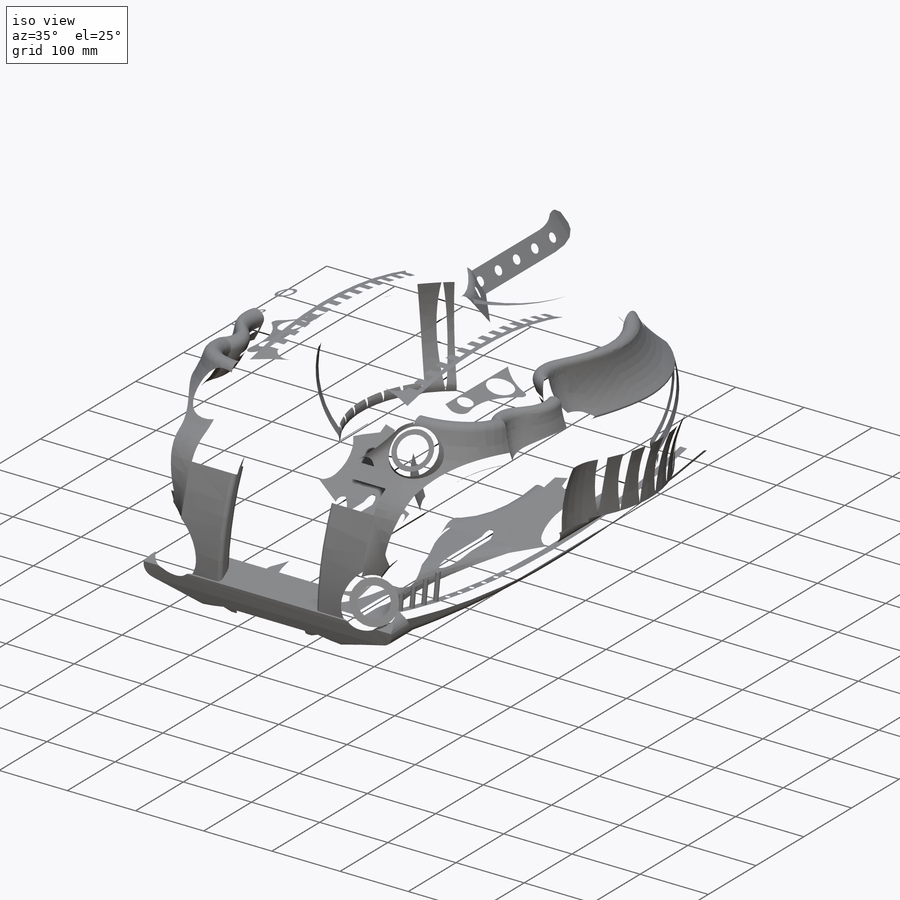
[diagram: iso view]
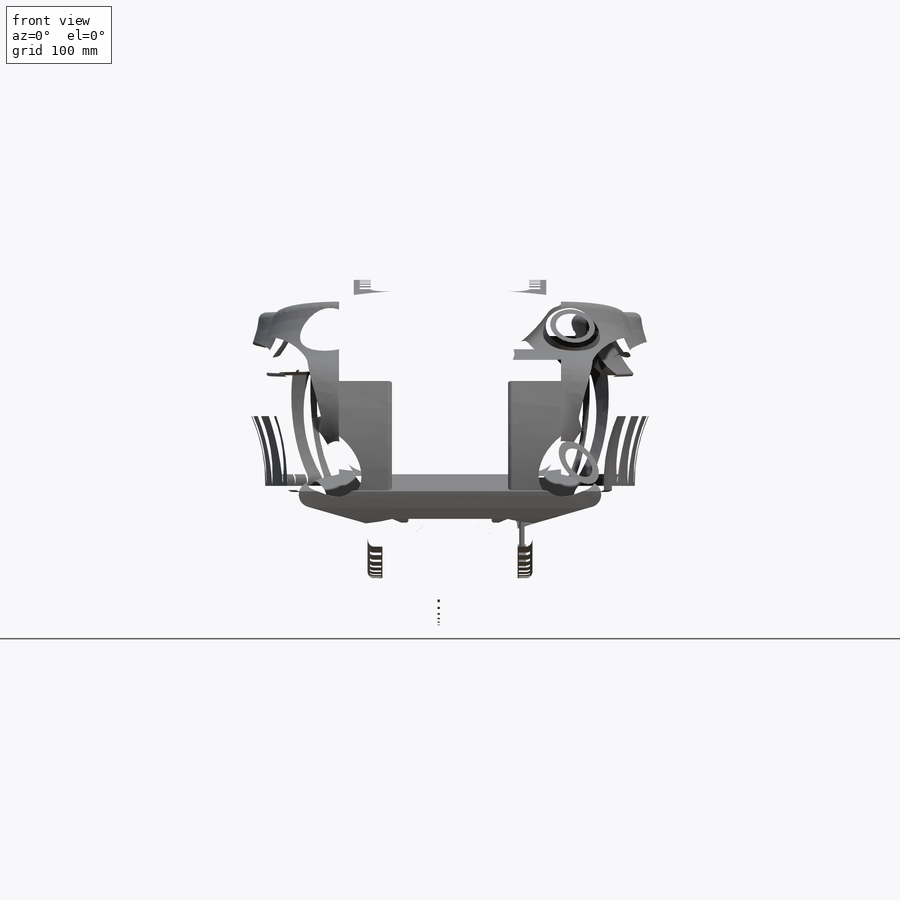
[diagram: front view]
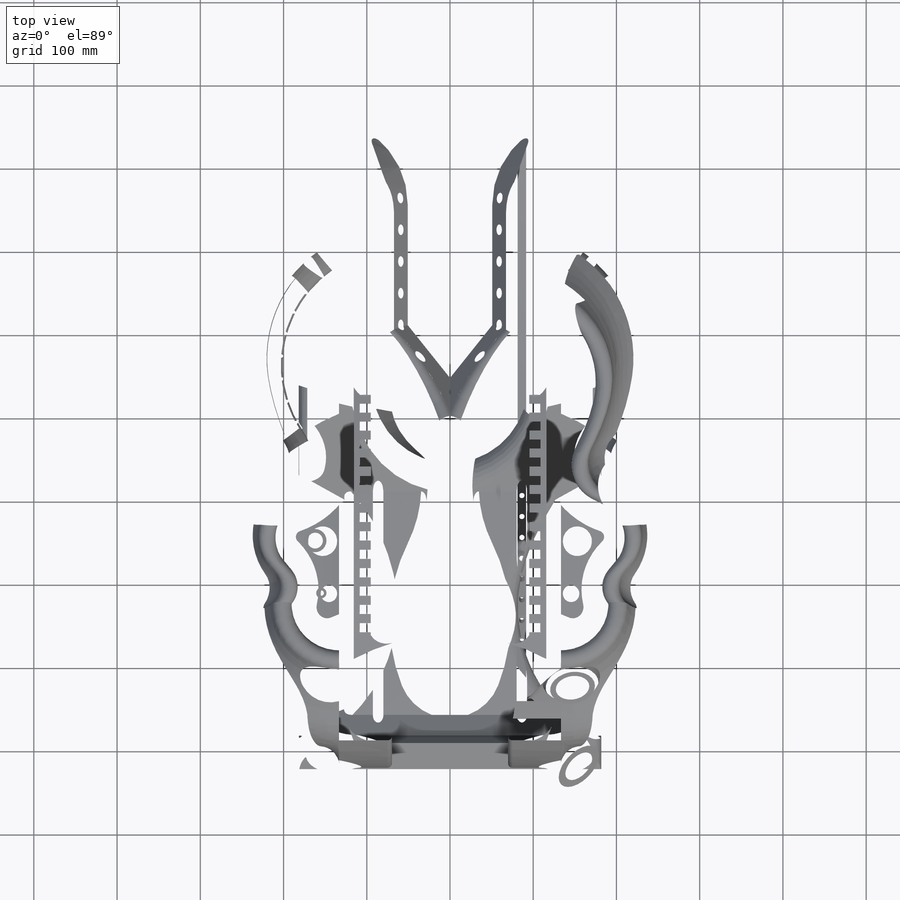
[diagram: top view]
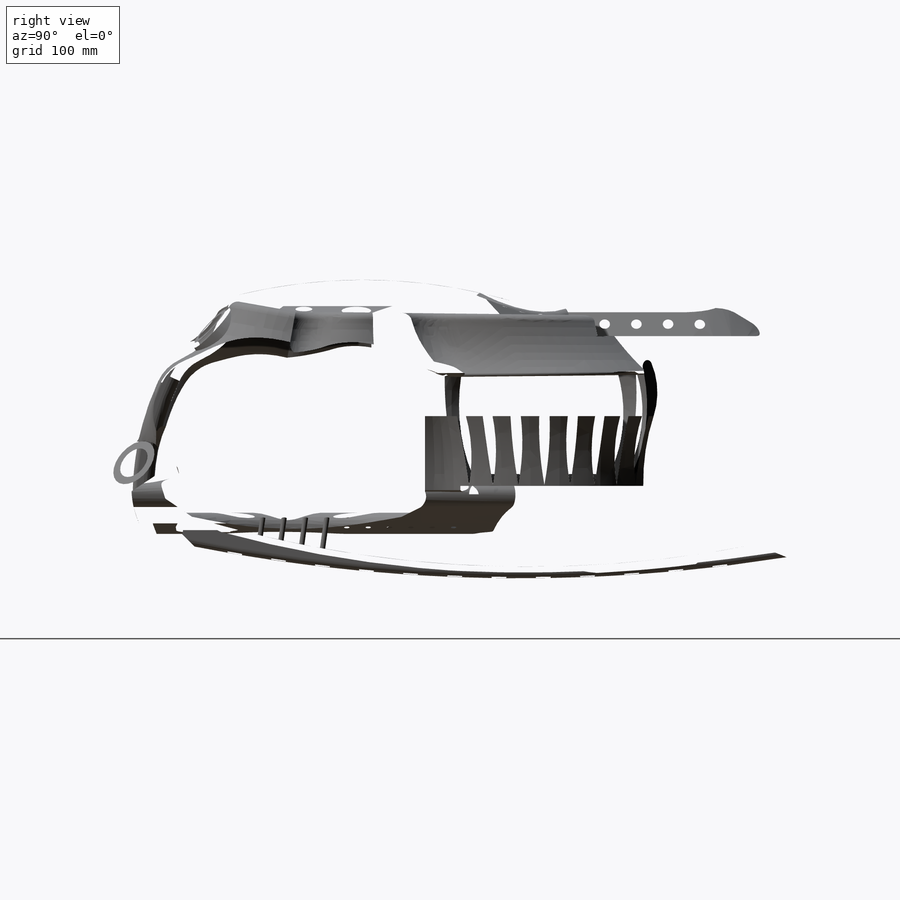
[diagram: right view]
SOLIDWORKS PART (.sldprt)
format: sldprt  version: not decoded by parser v0  size: 7,817,216 bytes
history: native  units: mm
features: sketch x58, fillet x57, plane x37, mirror x25, extrude x17, cut_extrude x16, revolve x7, pattern_circular x3, sweep x2, material x1, pattern_linear x1 (+13 scaffold rows collapsed)
feature tree (237):
  scaffold x13  (default folders/planes/origin — collapsed)
  material  "Material <not specified>"
  sketch  "Sketch1"  dims[D2=19.05mm D9=127.0mm D21=38.1mm D22=63.5mm D25=27.94mm D27=228.6mm D1=25.4mm D3=141.986mm D4=127.762mm D5=~61.94268mm D6=88.9mm D7=20.32mm D8=203.2mm D10=342.9mm D11=63.5mm D12=50.8mm D13=203.2mm D14=30.48mm D15=50.8mm D16=203.2mm D17=50.8mm D18=184.15mm D19=30.48mm D20=10.16mm D23=44.45mm D24=57.15mm D26=6.35mm]
  extrude  "Boss-Extrude1"  Depth=101.6mm
  sketch  "Sketch2"  dims[D4=19.05mm D1=127.0mm D2=63.5mm D3=88.9mm]
  extrude  "Boss-Extrude2"  Depth=12.7mm
  plane  "Plane1"  Offset=33.02mm
  sketch  "Sketch3"  dims[c1.D6=254.0mm c1.D3=50.8mm c1.D1=19.05mm c1.D2=55.88mm c2.D3=12.7mm c2.D4=76.2mm c2.D5=30.48mm c2.D7=3.81mm c2.D8=127.0mm c2.D2=25.4mm]
  cut_extrude  "Cut-Extrude1"  [1 undecoded]
  fillet  "Fillet1"  Radius=119.38mm
  fillet  "Fillet2"  Radius=10.16mm
  fillet  "Fillet3"  Radius=10.16mm
  plane  "Plane2"  Offset=101.6mm
  sketch  "Sketch4"  dims[D8=330.2mm D12=635.0mm D1=76.2mm D2=63.5mm D3=25.4mm D4=25.4mm D5=152.4mm D6=30.48mm D7=25.4mm D9=15.24mm D10=330.2mm D11=5.08mm]
  extrude  "Boss-Extrude3"  Depth=63.5mm
  mirror  "Mirror1"
  plane  "Plane3"
  plane  "Plane4"  Offset=2.54mm
  sketch  "Sketch5"  dims[D1=254.0mm]
  revolve  "Revolve1"  Angle=0.25deg
  fillet  "Fillet4"  Radius=50.8mm
  fillet  "Fillet5"  Radius=25.4mm
  fillet  "Fillet6"  Radius=25.4mm
  fillet  "Fillet7"  Radius=12.7mm
  fillet  "Fillet8"  Radius=12.7mm
  fillet  "Fillet9"  Radius=12.7mm
  fillet  "Fillet10"  Radius=12.7mm
  fillet  "Fillet11"  Radius=5.08mm
  fillet  "Fillet12"  Radius=17.78mm
  sketch  "Sketch6"  dims[c1.D1=127.0mm c1.D2=~83.504095mm c2.D2=10.0deg]
  revolve  "Revolve3"  Angle=90deg
  mirror  "Mirror2"
  fillet  "Fillet13"  Radius=35.56mm
  sketch  "Sketch7"
  sketch  "Sketch9"  dims[D1=11.684mm D9=30.226mm D2=208.28mm D3=66.04mm D4=86.106mm D5=76.454mm D6=1.27mm D7=25.4mm D8=21.59mm]
  plane  "Plane6"
  sketch  "Sketch10"  dims[D1=133.35mm]
  plane  "Plane7"
  sketch  "Sketch11"  dims[D1=16.764mm]
  mirror  "Mirror3"
  fillet  "Fillet14"  Radius=2.54mm
  fillet  "Fillet16"  Radius=2.54mm
  plane  "Plane8"
  plane  "Plane9"  Offset=40.64mm
  sketch  "Sketch12"  dims[D1=190.5mm D2=304.8mm]
  cut_extrude  "Cut-Extrude2"  Depth=71.12mm
  mirror  "Mirror4"
  plane  "Plane10"  Offset=6.35mm
  sketch  "Sketch13"  dims[c1.D1=19.05mm c1.D2=90.17mm c1.D3=110.49mm c1.D4=59.69mm c1.D5=88.9mm c1.D6=8.89mm c1.D7=7.62mm c1.D8=63.5mm c1.D9=25.4mm c1.D10=15.24mm c1.D11=25.4mm c1.D12=55.88mm c1.D13=43.18mm c1.D14=33.02mm c1.D15=88.9mm c1.D16=101.6mm c1.D17=55.88mm c1.D18=11.43mm c1.D19=20.32mm c1.D20=44.45mm c1.D21=27.94mm c1.D22=26.67mm c2.D19=29.21mm]
  extrude  "Boss-Extrude4"  Depth=5.08mm
  mirror  "Mirror5"
  plane  "Plane11"
  plane  "Plane12"  Offset=46.99mm
  sketch  "Sketch14"  dims[D1=158.75mm]
  cut_extrude  "Cut-Extrude3"  [1 undecoded]
  mirror  "Mirror6"
  fillet  "Fillet17"  Radius=12.7mm
  plane  "Plane13"
  plane  "Plane14"  Offset=12.7mm
  sketch  "Sketch16"
  sketch  "Sketch15"  dims[D1=43.18mm D2=15.24mm D3=15.24mm D4=66.04mm D5=15.24mm]
  revolve  "Revolve4"  Angle=1deg
  fillet  "Fillet18"  Radius=1.27mm
  pattern_circular  "CirPattern1"  Count=14 Angle=2deg
  plane  "Plane15"  Offset=58.42mm
  sketch  "Sketch17"  dims[D2=88.9mm D1=222.25mm D3=213.36mm]
  cut_extrude  "Cut-Extrude4"  [1 undecoded]
  mirror  "Mirror7"
  fillet  "Fillet19"  Radius=3.81mm
  sketch  "Sketch18"  dims[c1.D1=2.54mm c1.D2=3.81mm c1.D3=19.05mm c1.D4=1.27mm c1.D5=6.35mm c1.D6=30.48mm c1.D7=12.7mm c1.D8=22.86mm c2.D8=25.4mm]
  extrude  "Boss-Extrude5"  Depth=289.56mm
  sketch  "Sketch19"  dims[D1=76.2mm D2=88.9mm D3=30.48mm D4=88.9mm D5=330.2mm D6=12.7mm D7=101.6mm D8=203.2mm]
  extrude  "Boss-Extrude6"  Depth=152.4mm
  sketch  "Sketch20"  dims[D1=101.6mm D2=762.0mm]
  revolve  "Revolve5"  Angle=65deg
  mirror  "Mirror8"
  plane  "Plane16"  Offset=142.24mm
  sketch  "Sketch21"  dims[D1=114.3mm D3=181.61mm D2=91.44mm]
  cut_extrude  "Cut-Extrude5"  [1 undecoded]
  mirror  "Mirror9"
  fillet  "Fillet20"  Radius=34.29mm
  plane  "Plane17"  Offset=22.86mm
  sketch  "Sketch22"  dims[D1=203.2mm]
  plane  "Plane18"
  sketch  "Sketch23"  dims[D1=50.8mm D2=254.0mm D3=30.48mm]
  sweep  "Cut-Sweep1"
  mirror  "Mirror10"
  fillet  "Fillet21"  Radius=29.21mm
  fillet  "Fillet22"  Radius=66.04mm
  plane  "Plane19"
  sketch  "Sketch24"  dims[D1=12.7mm D2=12.7mm]
  extrude  "Boss-Extrude7"  Depth=12.7mm
  mirror  "Mirror11"
  fillet  "Fillet23"  Radius=66.04mm
  plane  "Plane21"
  sketch  "Sketch27"  dims[D3=63.5mm D1=11.43mm D2=142.24mm]
  extrude  "Boss-Extrude8"  Depth=2.54mm
  mirror  "Mirror13"
  fillet  "Fillet24"  Radius=5.08mm
  sketch  "Sketch28"  dims[D1=40.64mm]
  cut_extrude  "Cut-Extrude6"  Depth=10.16mm
  mirror  "Mirror14"
  fillet  "Fillet28"  Radius=5.08mm
  fillet  "Fillet30"  Radius=5.08mm
  sketch  "Sketch31"  dims[D5=1016.0mm D1=116.84mm D2=336.55mm D3=127.0mm D4=63.5mm]
  extrude  "Boss-Extrude9"  Depth=370.84mm
  sketch  "Sketch32"  dims[D1=33.02mm D2=43.18mm D3=2.54mm D4=2.54mm D5=2.54mm D6=2.54mm]
  extrude  "Boss-Extrude10"  Depth=375.92mm
  plane  "Plane23"  Offset=139.7mm
  sketch  "Sketch33"  dims[D8=203.2mm D1=88.9mm D2=12.7mm D3=12.7mm D4=30.48mm D5=25.4mm D6=6.35mm D7=12.7mm D9=317.5mm]
  cut_extrude  "Cut-Extrude9"  [1 undecoded]
  sketch  "Sketch35"  dims[D1=269.24mm D2=304.8mm]
  cut_extrude  "Cut-Extrude10"  [1 undecoded]
  fillet  "Fillet31"  Radius=25.4mm
  sketch  "Sketch36"  dims[D2=1079.5mm D1=558.8mm]
  cut_extrude  "Cut-Extrude11"  Depth=381mm
  fillet  "Fillet32"  Radius=25.4mm
  fillet  "Fillet33"  Radius=38.1mm
  fillet  "Fillet34"  Radius=25.4mm
  fillet  "Fillet35"  Radius=101.6mm
  fillet  "Fillet36"  Radius=22.86mm
  sketch  "Sketch37"  dims[c1.D3=15.24mm c1.D1=10.16mm c1.D2=38.1mm c2.D3=15.24mm c2.D4=68.58mm c2.D5=50.8mm c2.D6=~23.943826mm c2.D7=~30.240757mm]
  cut_extrude  "Cut-Extrude12"  [1 undecoded]
  fillet  "Fillet38"  Radius=5.08mm
  plane  "Plane24"
  sketch  "Sketch38"  dims[D1=63.5mm]
  extrude  "Boss-Extrude11"  Depth=38.1mm
  mirror  "Mirror15"
  fillet  "Fillet39"  Radius=7.62mm
  fillet  "Fillet40"  Radius=1.27mm
  fillet  "Fillet41"  Radius=1.27mm
  sketch  "Sketch39"  dims[D1=40.64mm]
  cut_extrude  "Cut-Extrude13"  Depth=10.16mm
  mirror  "Mirror16"
  fillet  "Fillet42"  Radius=40.64mm
  fillet  "Fillet43"  Radius=35.56mm
  plane  "Plane25"  Offset=228.6mm
  sketch  "Sketch40"  dims[c1.D5=7.62mm c1.D9=196.85mm c1.D1=31.75mm c1.D2=19.05mm c1.D3=19.05mm c1.D4=7.62mm c1.D6=137.16mm c1.D7=16.51mm c1.D8=88.9mm c1.D10=63.5mm c1.D11=63.5mm c2.D11=90.0deg c3.D11=1016.0mm c4.D11=5.08mm]
  plane  "Plane26"
  sketch  "Sketch41"  dims[D1=44.45mm]
  sweep  "Sweep1"
  fillet  "Fillet44"  Radius=15.24mm
  mirror  "Mirror17"
  fillet  "Fillet45"  Radius=15.24mm
  plane  "Plane27"  Offset=248.92mm
  sketch  "Sketch42"  dims[D4=381.0mm D1=6.35mm D2=6.35mm D3=372.11mm]
  cut_extrude  "Cut-Extrude14"  [1 undecoded]
  pattern_circular  "CirPattern3"  Count=32 Angle=360deg
  mirror  "Mirror18"
  plane  "Plane28"  Offset=88.9mm
  sketch  "Sketch43"  dims[D6=2032.0mm D10=1397.0mm D1=30.48mm D2=15.24mm D3=15.24mm D4=711.2mm D5=12.7mm D7=38.1mm D8=15.24mm D9=38.1mm]
  extrude  "Boss-Extrude12"  Depth=20.32mm
  mirror  "Mirror19"
  fillet  "Fillet47"  Radius=7.62mm
  fillet  "Fillet48"  Radius=10.16mm
  fillet  "Fillet49"  Radius=7.62mm
  fillet  "Fillet53"  Radius=2.54mm
  sketch  "Sketch44"  dims[D2=203.2mm D3=165.1mm D1=101.6mm]
  cut_extrude  "Cut-Extrude15"  [1 undecoded]
  mirror  "Mirror20"
  fillet  "Fillet54"  Radius=17.78mm
  plane  "Plane29"  Offset=73.66mm
  sketch  "Sketch45"  dims[D1=190.5mm]
  plane  "Plane30"
  plane  "Plane31"  Offset=7.62mm
  sketch  "Sketch46"  dims[D1=6.35mm D2=304.8mm D4=25.4mm D3=10.0]
  extrude  "Boss-Extrude13"  [1 undecoded]
  plane  "Plane32"  Offset=22.86mm
  sketch  "Sketch47"  dims[D1=12.7mm]
  extrude  "Boss-Extrude14"  Depth=210.82mm
  mirror  "Mirror21"
  plane  "Plane33"
  sketch  "Sketch48"  dims[c1.D1=30.48mm c1.D5=15.24mm c1.D3=127.0mm c1.D2=30.48mm c2.D3=63.5mm c2.D4=7.62mm]
  extrude  "Boss-Extrude15"  Depth=40.64mm
  mirror  "Mirror25"
  fillet  "Fillet55"  Radius=2.54mm
  fillet  "Fillet56"  Radius=1.27mm
  sketch  "Sketch49"  dims[D1=19.05mm D2=6.35mm]
  cut_extrude  "Cut-Extrude16"  Depth=38.1mm
  mirror  "Mirror26"
  sketch  "Sketch50"
  sketch  "Sketch51"
  plane  "Plane34"
  sketch  "Sketch52"  dims[D6=7.62mm D1=38.1mm D2=114.3mm D3=8.89mm D4=6.35mm D5=25.4mm D7=19.05mm D8=25.4mm D9=6.35mm D10=6.35mm D11=25.4mm]
  revolve  "Revolve6"  Angle=0.5deg
  pattern_circular  "CirPattern5"  Count=12 Angle=1.5deg
  fillet  "Fillet57"  Radius=25.4mm
  fillet  "Fillet58"  Radius=50.8mm
  sketch  "Sketch53"  dims[D2=25.4mm D3=10.16mm D1=3.81mm]
  revolve  "Revolve7"  Angle=30deg
  fillet  "Fillet59"  Radius=12.7mm
  fillet  "Fillet60"  Radius=5.08mm
  sketch  "Sketch55"  dims[D5=88.9mm D1=736.6mm D2=50.8mm D3=71.12mm D4=63.5mm D6=~452.535874mm]
  cut_extrude  "Cut-Extrude17"  Depth=2.54mm
  fillet  "Fillet61"  Radius=12.7mm
  fillet  "Fillet62"  Radius=5.08mm
  plane  "Plane35"  Offset=172.72mm
  sketch  "Sketch56"  dims[c1.D1=54.61mm c1.D2=54.61mm c1.D4=203.2mm c2.D2=101.6mm c2.D3=165.1mm]
  cut_extrude  "Cut-Extrude18"  [1 undecoded]
  fillet  "Fillet63"  Radius=7.62mm
  fillet  "Fillet64"  Radius=12.7mm
  sketch  "Sketch57"  dims[D1=127.0mm]
  plane  "Plane36"
  sketch  "Sketch58"  dims[c1.D3=~138.911415mm c1.D1=2.54mm c1.D2=2.54mm c2.D3=1.27mm]
  extrude  "Boss-Extrude16"  Depth=10.16mm
  mirror  "Mirror27"
  sketch  "Sketch59"  dims[D1=8.89mm D2=8.89mm]
  plane  "Plane37"  Offset=96.52mm
  sketch  "Sketch60"  dims[D3=2029.46mm D1=25.4mm D2=190.5mm]
  plane  "Plane38"
  sketch  "Sketch61"  dims[D3=76.2mm D1=44.45mm D2=56.515mm]
  plane  "Plane39"
  sketch  "Sketch62"  dims[D2=127.0mm D1=12.7mm]
  mirror  "Mirror28"
  fillet  "Fillet67"  Radius=5.08mm
  fillet  "Fillet70"  Radius=2.54mm
  sketch  "Sketch63"
  extrude  "Boss-Extrude17"  Depth=44.45mm
  fillet  "Fillet71"  Radius=3.175mm
  mirror  "Mirror29"
  plane  "Plane40"  Offset=368.3mm
  sketch  "Sketch64"  dims[D1=355.6mm]
  sketch  "Sketch65"  dims[D1=12.7mm]
  revolve  "Revolve8"  Angle=50deg
  pattern_linear  "LPattern1"  Count1=6 Count2=1 Spacing1=38.1mm Spacing2=2.54mm
decode coverage: 143 of 186 modeling features carry decoded parameters
note: ~ marks probable driven/reference dimensions
note: 11 parameter values undecoded
summary: no parameter record found for 11 features
note: suppression state not decoded; provenance and decode notes live in map.json
